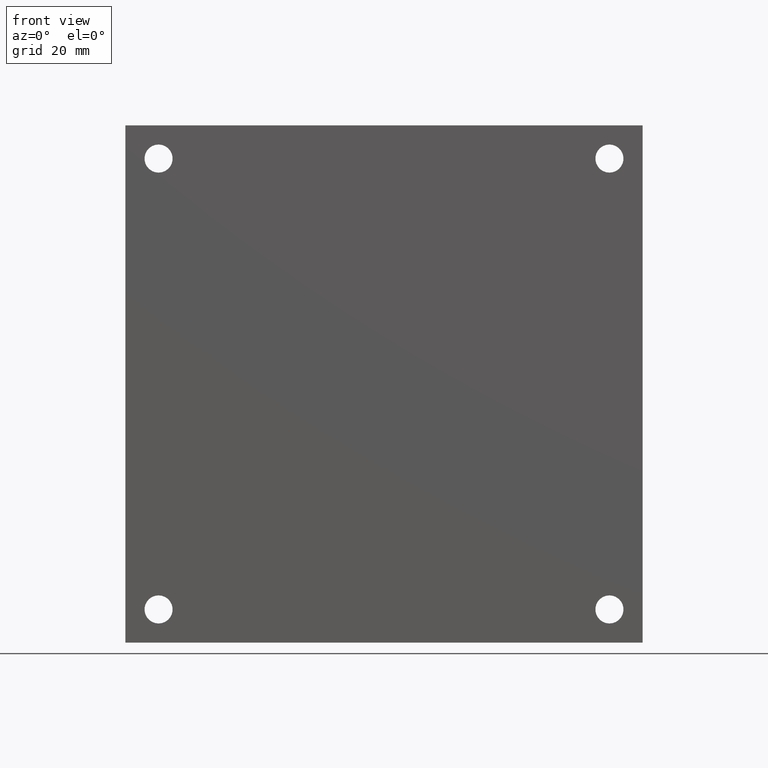
[diagram: clean part render]
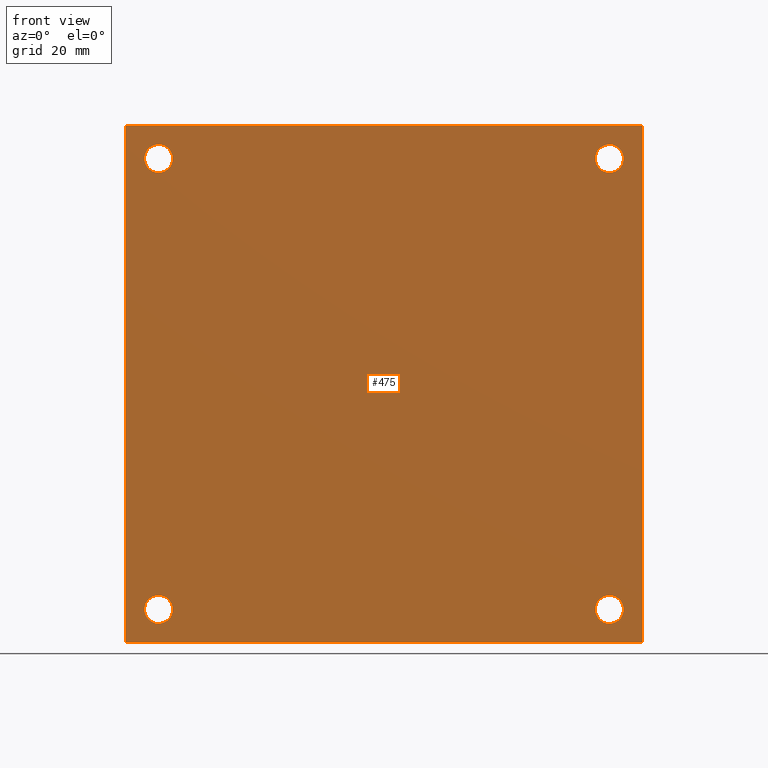
[diagram: same view with one face highlighted and labeled with its STEP entity id]
A machine part, front view. The second image highlights one B-rep face of the part: STEP entity #475.
In plain terms, the highlighted planar face has unit normal (0, -1, 0).
Its self-contained STEP definition (entity closure, byte-faithful):
#15 = FACE_BOUND ( 'NONE', #131, .T. ) ;
#20 = DIRECTION ( 'NONE',  ( 0.0000000000000000000, 0.0000000000000000000, 1.000000000000000000 ) ) ;
#25 = EDGE_CURVE ( 'NONE', #456, #456, #75, .T. ) ;
#26 = DIRECTION ( 'NONE',  ( 0.0000000000000000000, 0.0000000000000000000, 1.000000000000000000 ) ) ;
#31 = AXIS2_PLACEMENT_3D ( 'NONE', #509, #153, #26 ) ;
#38 = ORIENTED_EDGE ( 'NONE', *, *, #190, .T. ) ;
#40 = AXIS2_PLACEMENT_3D ( 'NONE', #179, #505, #20 ) ;
#51 = DIRECTION ( 'NONE',  ( -0.0000000000000000000, 1.000000000000000000, -0.0000000000000000000 ) ) ;
#52 = CARTESIAN_POINT ( 'NONE',  ( -2.125000000000000000, 0.0000000000000000000, -2.125000000000000000 ) ) ;
#59 = CARTESIAN_POINT ( 'NONE',  ( 2.437500000000000000, 0.0000000000000000000, 2.437500000000000000 ) ) ;
#62 = VERTEX_POINT ( 'NONE', #473 ) ;
#65 = FACE_BOUND ( 'NONE', #498, .T. ) ;
#74 = CARTESIAN_POINT ( 'NONE',  ( 2.125000000000000000, 0.0000000000000000000, 2.125000000000000000 ) ) ;
#75 = CIRCLE ( 'NONE', #481, 0.1325000000000000344 ) ;
#85 = CARTESIAN_POINT ( 'NONE',  ( 2.437500000000000000, 0.0000000000000000000, -2.437500000000000000 ) ) ;
#88 = DIRECTION ( 'NONE',  ( 0.0000000000000000000, -0.0000000000000000000, -1.000000000000000000 ) ) ;
#90 = LINE ( 'NONE', #85, #371 ) ;
#94 = CARTESIAN_POINT ( 'NONE',  ( -2.437500000000000000, 0.0000000000000000000, -2.437500000000000000 ) ) ;
#95 = VECTOR ( 'NONE', #177, 39.37007874015748143 ) ;
#97 = EDGE_LOOP ( 'NONE', ( #469 ) ) ;
#108 = CIRCLE ( 'NONE', #31, 0.1325000000000000344 ) ;
#119 = AXIS2_PLACEMENT_3D ( 'NONE', #52, #51, #172 ) ;
#131 = EDGE_LOOP ( 'NONE', ( #441 ) ) ;
#142 = LINE ( 'NONE', #490, #457 ) ;
#152 = DIRECTION ( 'NONE',  ( 0.0000000000000000000, -0.0000000000000000000, -1.000000000000000000 ) ) ;
#153 = DIRECTION ( 'NONE',  ( -0.0000000000000000000, 1.000000000000000000, -0.0000000000000000000 ) ) ;
#162 = VECTOR ( 'NONE', #449, 39.37007874015748143 ) ;
#171 = EDGE_LOOP ( 'NONE', ( #284 ) ) ;
#172 = DIRECTION ( 'NONE',  ( 0.0000000000000000000, 0.0000000000000000000, 1.000000000000000000 ) ) ;
#177 = DIRECTION ( 'NONE',  ( -1.000000000000000000, -0.0000000000000000000, -0.0000000000000000000 ) ) ;
#179 = CARTESIAN_POINT ( 'NONE',  ( 2.125000000000000000, 0.0000000000000000000, -2.125000000000000000 ) ) ;
#190 = EDGE_CURVE ( 'NONE', #409, #352, #90, .T. ) ;
#192 = CARTESIAN_POINT ( 'NONE',  ( -2.437500000000000000, 0.0000000000000000000, -2.437500000000000000 ) ) ;
#206 = FACE_OUTER_BOUND ( 'NONE', #526, .T. ) ;
#208 = LINE ( 'NONE', #94, #162 ) ;
#217 = EDGE_CURVE ( 'NONE', #289, #289, #304, .T. ) ;
#223 = VERTEX_POINT ( 'NONE', #523 ) ;
#225 = EDGE_CURVE ( 'NONE', #485, #409, #208, .T. ) ;
#228 = DIRECTION ( 'NONE',  ( 0.0000000000000000000, -1.000000000000000000, 0.0000000000000000000 ) ) ;
#229 = CARTESIAN_POINT ( 'NONE',  ( 2.437500000000000000, 0.0000000000000000000, -2.437500000000000444 ) ) ;
#237 = ORIENTED_EDGE ( 'NONE', *, *, #225, .T. ) ;
#241 = EDGE_CURVE ( 'NONE', #352, #437, #274, .T. ) ;
#252 = EDGE_CURVE ( 'NONE', #437, #485, #142, .T. ) ;
#274 = LINE ( 'NONE', #412, #95 ) ;
#284 = ORIENTED_EDGE ( 'NONE', *, *, #497, .T. ) ;
#289 = VERTEX_POINT ( 'NONE', #517 ) ;
#302 = CARTESIAN_POINT ( 'NONE',  ( -2.437500000000000000, 0.0000000000000000000, -2.437500000000000000 ) ) ;
#304 = CIRCLE ( 'NONE', #119, 0.1325000000000000344 ) ;
#308 = AXIS2_PLACEMENT_3D ( 'NONE', #302, #228, #152 ) ;
#316 = DIRECTION ( 'NONE',  ( 0.0000000000000000000, 0.0000000000000000000, 1.000000000000000000 ) ) ;
#342 = CARTESIAN_POINT ( 'NONE',  ( -2.437500000000000000, 0.0000000000000000000, 2.437500000000000000 ) ) ;
#352 = VERTEX_POINT ( 'NONE', #59 ) ;
#354 = DIRECTION ( 'NONE',  ( -0.0000000000000000000, 1.000000000000000000, -0.0000000000000000000 ) ) ;
#357 = ORIENTED_EDGE ( 'NONE', *, *, #241, .T. ) ;
#371 = VECTOR ( 'NONE', #410, 39.37007874015748143 ) ;
#380 = EDGE_CURVE ( 'NONE', #223, #223, #514, .T. ) ;
#394 = PLANE ( 'NONE',  #308 ) ;
#409 = VERTEX_POINT ( 'NONE', #229 ) ;
#410 = DIRECTION ( 'NONE',  ( -0.0000000000000000000, 0.0000000000000000000, 1.000000000000000000 ) ) ;
#412 = CARTESIAN_POINT ( 'NONE',  ( -2.437500000000000000, 0.0000000000000000000, 2.437500000000000000 ) ) ;
#420 = FACE_BOUND ( 'NONE', #97, .T. ) ;
#437 = VERTEX_POINT ( 'NONE', #342 ) ;
#439 = FACE_BOUND ( 'NONE', #171, .T. ) ;
#441 = ORIENTED_EDGE ( 'NONE', *, *, #380, .T. ) ;
#449 = DIRECTION ( 'NONE',  ( 1.000000000000000000, 0.0000000000000000000, 0.0000000000000000000 ) ) ;
#456 = VERTEX_POINT ( 'NONE', #471 ) ;
#457 = VECTOR ( 'NONE', #88, 39.37007874015748143 ) ;
#469 = ORIENTED_EDGE ( 'NONE', *, *, #217, .T. ) ;
#471 = CARTESIAN_POINT ( 'NONE',  ( 2.125000000000000000, 0.0000000000000000000, 2.257500000000000284 ) ) ;
#473 = CARTESIAN_POINT ( 'NONE',  ( -2.125000000000000000, 0.0000000000000000000, 2.257500000000000284 ) ) ;
#475 = ADVANCED_FACE ( 'NONE', ( #206, #420, #439, #15, #65 ), #394, .T. ) ;
#481 = AXIS2_PLACEMENT_3D ( 'NONE', #74, #354, #316 ) ;
#485 = VERTEX_POINT ( 'NONE', #192 ) ;
#486 = ORIENTED_EDGE ( 'NONE', *, *, #252, .T. ) ;
#490 = CARTESIAN_POINT ( 'NONE',  ( -2.437500000000000000, 0.0000000000000000000, -2.437500000000000000 ) ) ;
#497 = EDGE_CURVE ( 'NONE', #62, #62, #108, .T. ) ;
#498 = EDGE_LOOP ( 'NONE', ( #525 ) ) ;
#505 = DIRECTION ( 'NONE',  ( -0.0000000000000000000, 1.000000000000000000, -0.0000000000000000000 ) ) ;
#509 = CARTESIAN_POINT ( 'NONE',  ( -2.125000000000000000, 0.0000000000000000000, 2.125000000000000000 ) ) ;
#514 = CIRCLE ( 'NONE', #40, 0.1325000000000000344 ) ;
#517 = CARTESIAN_POINT ( 'NONE',  ( -2.125000000000000000, 0.0000000000000000000, -1.992500000000000160 ) ) ;
#523 = CARTESIAN_POINT ( 'NONE',  ( 2.125000000000000000, 0.0000000000000000000, -1.992500000000000160 ) ) ;
#525 = ORIENTED_EDGE ( 'NONE', *, *, #25, .T. ) ;
#526 = EDGE_LOOP ( 'NONE', ( #38, #357, #486, #237 ) ) ;